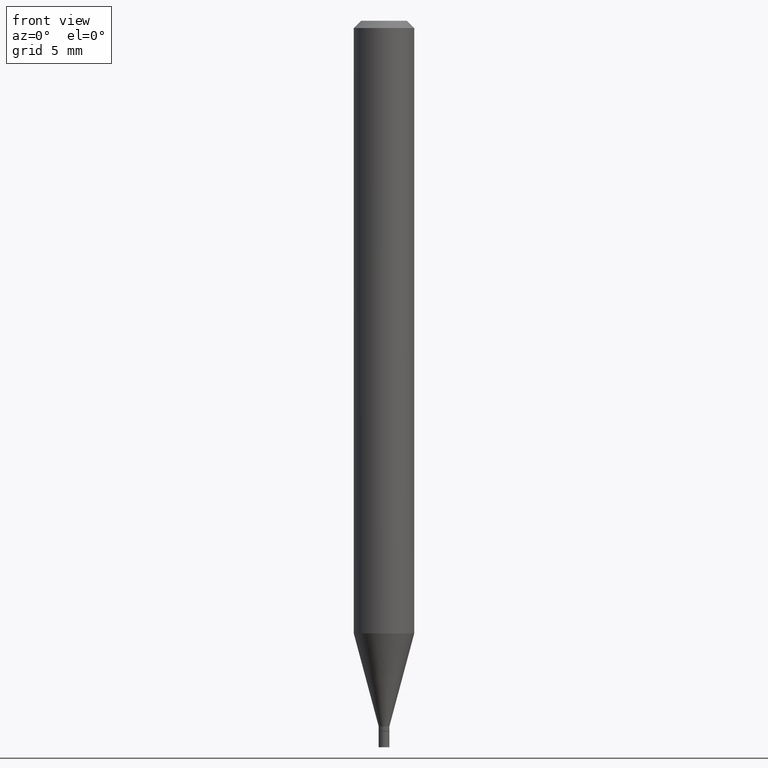
[diagram: clean part render]
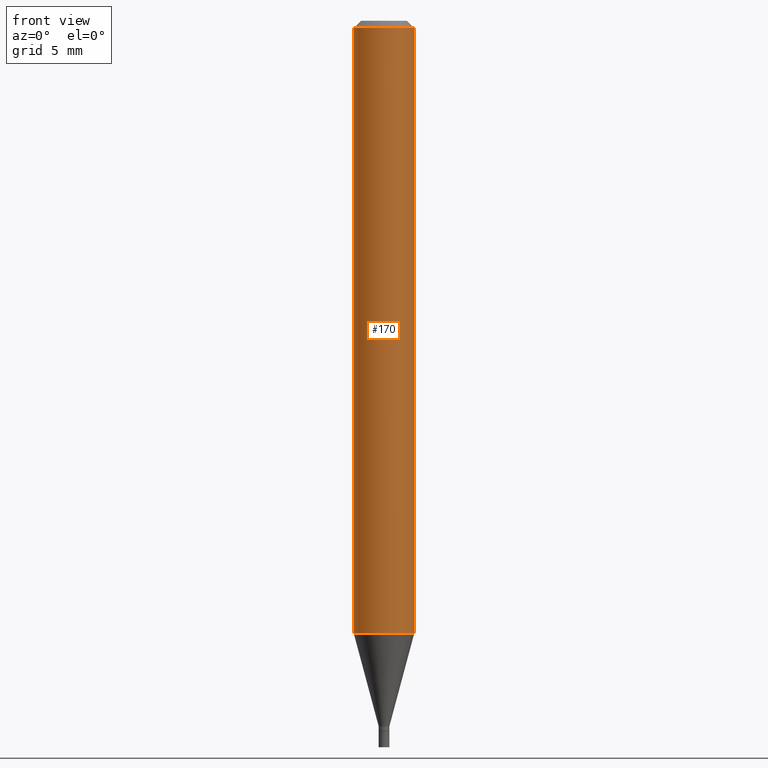
[diagram: same view with one face highlighted and labeled with its STEP entity id]
A machine part, front view. The second image highlights one B-rep face of the part: STEP entity #170.
In plain terms, the highlighted cylindrical surface (edge-blend (fillet) strip) has radius 1.5875 mm, axis along (-0, 0, 1).
Its self-contained STEP definition (entity closure, byte-faithful):
#12 = VECTOR ( 'NONE', #323, 39.37007874015748143 ) ;
#26 = EDGE_CURVE ( 'NONE', #77, #109, #222, .T. ) ;
#42 = ORIENTED_EDGE ( 'NONE', *, *, #327, .T. ) ;
#61 = DIRECTION ( 'NONE',  ( -2.445468806185136597E-29, 3.491481338843145583E-15, 1.000000000000000000 ) ) ;
#67 = DIRECTION ( 'NONE',  ( 1.000000000000000000, -6.982962677686262766E-15, 0.000000000000000000 ) ) ;
#77 = VERTEX_POINT ( 'NONE', #373 ) ;
#81 = AXIS2_PLACEMENT_3D ( 'NONE', #379, #108, #67 ) ;
#86 = ORIENTED_EDGE ( 'NONE', *, *, #26, .F. ) ;
#91 = CARTESIAN_POINT ( 'NONE',  ( 3.668203209277705088E-31, -5.237222008264718399E-17, -0.01499999999999999944 ) ) ;
#95 = DIRECTION ( 'NONE',  ( -2.445468806185136597E-29, 3.491481338843145583E-15, 1.000000000000000000 ) ) ;
#102 = FACE_OUTER_BOUND ( 'NONE', #116, .T. ) ;
#107 = AXIS2_PLACEMENT_3D ( 'NONE', #229, #61, #198 ) ;
#108 = DIRECTION ( 'NONE',  ( -2.445468806185136597E-29, 3.491481338843145583E-15, 1.000000000000000000 ) ) ;
#109 = VERTEX_POINT ( 'NONE', #166 ) ;
#116 = EDGE_LOOP ( 'NONE', ( #348, #42, #218, #86 ) ) ;
#123 = CARTESIAN_POINT ( 'NONE',  ( 0.06250000000000000000, -4.364351673553916694E-16, 3.047610484872459871E-30 ) ) ;
#131 = CYLINDRICAL_SURFACE ( 'NONE', #107, 0.06250000000000000000 ) ;
#142 = DIRECTION ( 'NONE',  ( -2.445468806185136877E-29, 3.491481338843145188E-15, 1.000000000000000000 ) ) ;
#166 = CARTESIAN_POINT ( 'NONE',  ( 0.06250000000000000000, -4.888073874380388472E-16, -0.01499999999999999944 ) ) ;
#170 = ADVANCED_FACE ( 'NONE', ( #102 ), #131, .T. ) ;
#198 = DIRECTION ( 'NONE',  ( 1.000000000000000000, -6.982962677686266711E-15, 4.876176775795935793E-29 ) ) ;
#218 = ORIENTED_EDGE ( 'NONE', *, *, #365, .T. ) ;
#222 = CIRCLE ( 'NONE', #384, 0.06250000000000000000 ) ;
#229 = CARTESIAN_POINT ( 'NONE',  ( 0.000000000000000000, 0.000000000000000000, 0.000000000000000000 ) ) ;
#233 = LINE ( 'NONE', #451, #368 ) ;
#249 = LINE ( 'NONE', #123, #12 ) ;
#252 = EDGE_CURVE ( 'NONE', #297, #77, #233, .T. ) ;
#269 = CARTESIAN_POINT ( 'NONE',  ( -0.06250000000000000000, -3.971934234706977480E-15, -1.264799383410203149 ) ) ;
#274 = CIRCLE ( 'NONE', #81, 0.06250000000000000000 ) ;
#297 = VERTEX_POINT ( 'NONE', #269 ) ;
#323 = DIRECTION ( 'NONE',  ( -2.445468806185136877E-29, 3.491481338843145188E-15, 1.000000000000000000 ) ) ;
#327 = EDGE_CURVE ( 'NONE', #297, #422, #274, .T. ) ;
#348 = ORIENTED_EDGE ( 'NONE', *, *, #252, .F. ) ;
#365 = EDGE_CURVE ( 'NONE', #422, #109, #249, .T. ) ;
#368 = VECTOR ( 'NONE', #142, 39.37007874015748143 ) ;
#372 = DIRECTION ( 'NONE',  ( 1.000000000000000000, -6.982962677686266711E-15, 0.000000000000000000 ) ) ;
#373 = CARTESIAN_POINT ( 'NONE',  ( -0.06250000000000000000, -1.790108622469781169E-15, -0.01499999999999999944 ) ) ;
#379 = CARTESIAN_POINT ( 'NONE',  ( 3.093027438211846075E-29, -4.416023444557040885E-15, -1.264799383410203149 ) ) ;
#384 = AXIS2_PLACEMENT_3D ( 'NONE', #91, #95, #372 ) ;
#422 = VERTEX_POINT ( 'NONE', #466 ) ;
#451 = CARTESIAN_POINT ( 'NONE',  ( -0.06250000000000000000, 4.440892098500626162E-16, -3.074334431409316114E-30 ) ) ;
#466 = CARTESIAN_POINT ( 'NONE',  ( 0.06250000000000000000, -4.852458611912431766E-15, -1.264799383410203149 ) ) ;